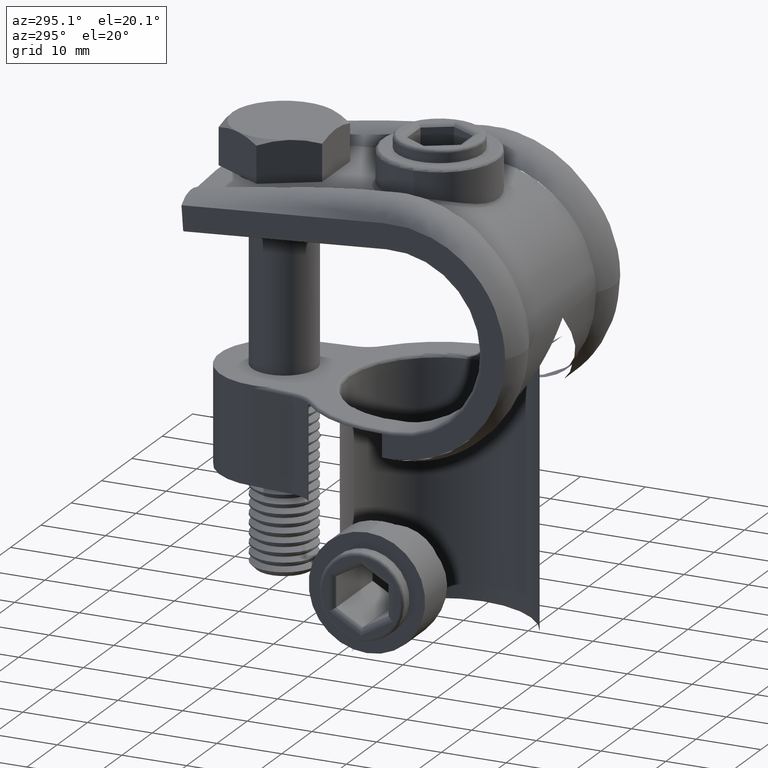
[diagram: clean part render]
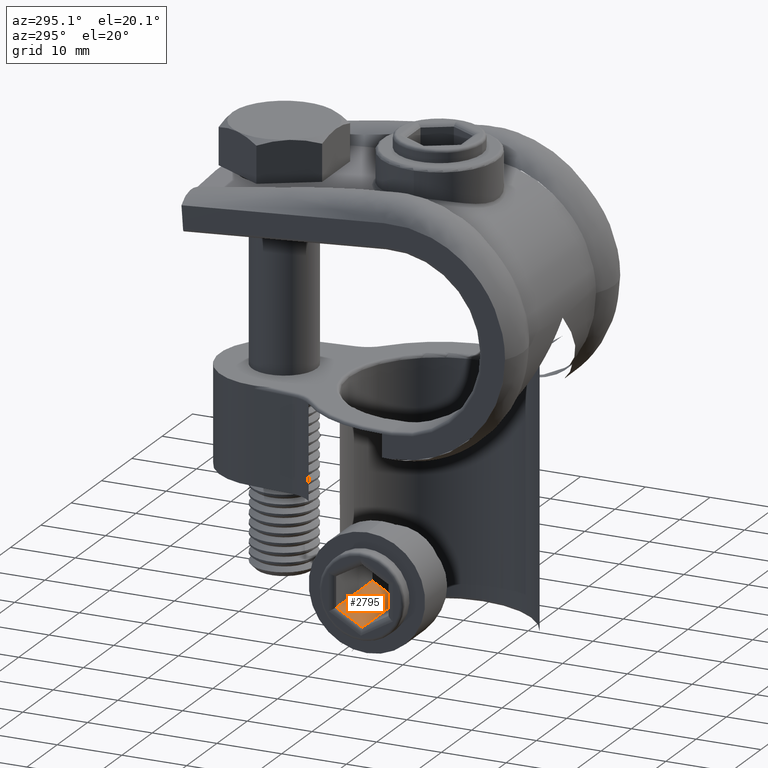
[diagram: same view with one face highlighted and labeled with its STEP entity id]
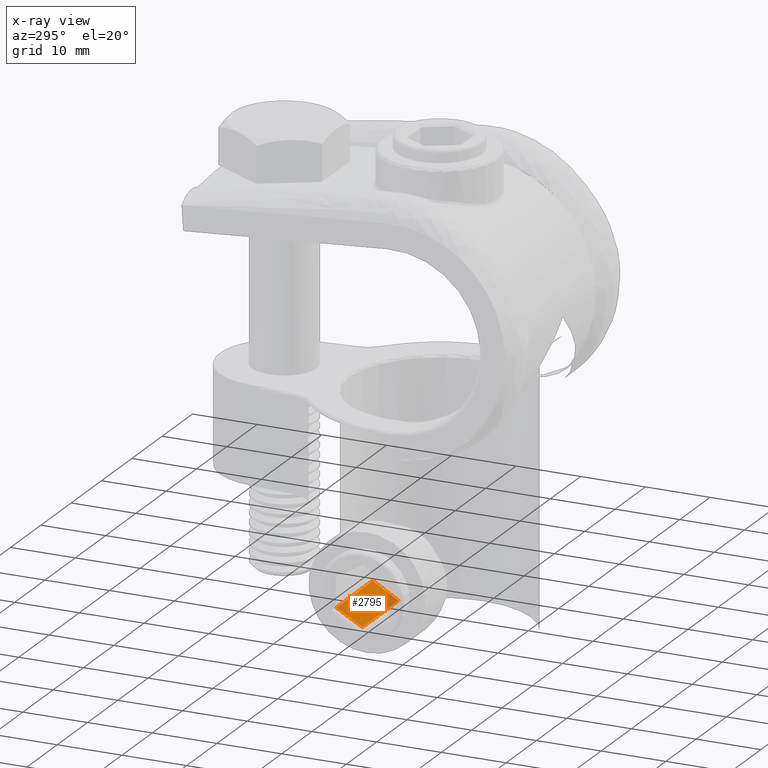
[diagram: x-ray of the same camera — body ghosted, the highlighted face saturated]
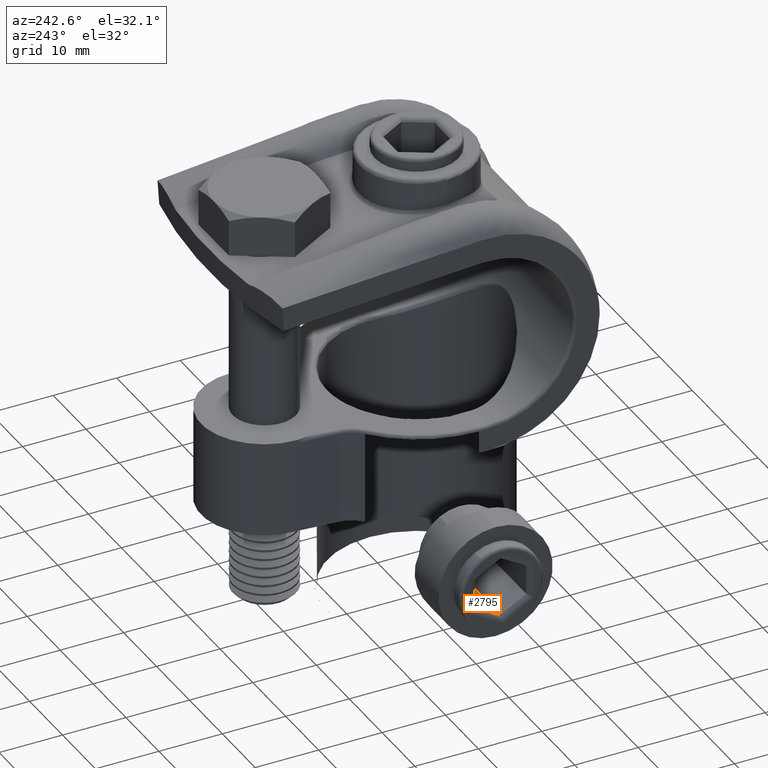
[diagram: same view with one face highlighted and labeled with its STEP entity id]
A machine part, auxiliary view. The second image highlights one B-rep face of the part: STEP entity #2795.
The next image is the same camera in x-ray: the body ghosted, the highlighted face saturated — about 5% of this face is hidden behind the body in this view.
A second angle (auxiliary view) of the same face is appended — the face is thin or edge-on in the first view.
In plain terms, the highlighted planar face has unit normal (0, 0.5, -0.866).
Its self-contained STEP definition (entity closure, byte-faithful):
#230 = VERTEX_POINT ( 'NONE', #2260 ) ;
#349 = CARTESIAN_POINT ( 'NONE',  ( 2.337499999999998579, 12.49999999999999822, -4.048668762692252621 ) ) ;
#466 = DIRECTION ( 'NONE',  ( -0.4999999999999998890, 0.000000000000000000, -0.8660254037844387076 ) ) ;
#634 = EDGE_LOOP ( 'NONE', ( #5963, #2489, #1065, #1795 ) ) ;
#652 = DIRECTION ( 'NONE',  ( 0.4999999999999998890, 0.000000000000000000, 0.8660254037844387076 ) ) ;
#995 = EDGE_CURVE ( 'NONE', #230, #3115, #4019, .T. ) ;
#1065 = ORIENTED_EDGE ( 'NONE', *, *, #3827, .F. ) ;
#1148 = CARTESIAN_POINT ( 'NONE',  ( 2.337499999999998579, 0.000000000000000000, -4.048668762692252621 ) ) ;
#1620 = VECTOR ( 'NONE', #5379, 1000.000000000000000 ) ;
#1795 = ORIENTED_EDGE ( 'NONE', *, *, #3924, .T. ) ;
#1897 = CARTESIAN_POINT ( 'NONE',  ( 2.337499999999999023, 12.50000000000000178, -4.048668762692252621 ) ) ;
#2260 = CARTESIAN_POINT ( 'NONE',  ( 4.674999999999998934, 0.5000000000000036637, -9.462810255028965378E-16 ) ) ;
#2333 = CARTESIAN_POINT ( 'NONE',  ( 2.337499999999998579, 0.5000000000000036637, -4.048668762692252621 ) ) ;
#2489 = ORIENTED_EDGE ( 'NONE', *, *, #3609, .T. ) ;
#2500 = VECTOR ( 'NONE', #466, 1000.000000000000000 ) ;
#2754 = DIRECTION ( 'NONE',  ( -0.000000000000000000, 1.000000000000000000, -0.000000000000000000 ) ) ;
#2795 = ADVANCED_FACE ( 'NONE', ( #2927 ), #5517, .F. ) ;
#2914 = VERTEX_POINT ( 'NONE', #2333 ) ;
#2927 = FACE_OUTER_BOUND ( 'NONE', #634, .T. ) ;
#3010 = CARTESIAN_POINT ( 'NONE',  ( 4.674999999999998934, 12.49999999999999822, -9.462810255028965378E-16 ) ) ;
#3115 = VERTEX_POINT ( 'NONE', #3010 ) ;
#3177 = CARTESIAN_POINT ( 'NONE',  ( 4.674999999999998934, 0.000000000000000000, -9.462810255028965378E-16 ) ) ;
#3609 = EDGE_CURVE ( 'NONE', #3115, #5684, #4972, .T. ) ;
#3618 = DIRECTION ( 'NONE',  ( 0.8660254037844387076, 0.000000000000000000, -0.4999999999999998890 ) ) ;
#3827 = EDGE_CURVE ( 'NONE', #2914, #5684, #5643, .T. ) ;
#3924 = EDGE_CURVE ( 'NONE', #2914, #230, #5407, .T. ) ;
#4008 = VECTOR ( 'NONE', #652, 1000.000000000000000 ) ;
#4019 = LINE ( 'NONE', #6012, #5418 ) ;
#4179 = AXIS2_PLACEMENT_3D ( 'NONE', #3177, #3618, #5984 ) ;
#4397 = CARTESIAN_POINT ( 'NONE',  ( 4.674999999999998934, 0.5000000000000038858, -9.462810255028965378E-16 ) ) ;
#4972 = LINE ( 'NONE', #1897, #2500 ) ;
#5379 = DIRECTION ( 'NONE',  ( -0.000000000000000000, 1.000000000000000000, -0.000000000000000000 ) ) ;
#5407 = LINE ( 'NONE', #4397, #4008 ) ;
#5418 = VECTOR ( 'NONE', #2754, 1000.000000000000000 ) ;
#5517 = PLANE ( 'NONE',  #4179 ) ;
#5643 = LINE ( 'NONE', #1148, #1620 ) ;
#5684 = VERTEX_POINT ( 'NONE', #349 ) ;
#5963 = ORIENTED_EDGE ( 'NONE', *, *, #995, .T. ) ;
#5984 = DIRECTION ( 'NONE',  ( -0.4999999999999998890, 0.000000000000000000, -0.8660254037844387076 ) ) ;
#6012 = CARTESIAN_POINT ( 'NONE',  ( 4.674999999999998934, 0.000000000000000000, -9.462810255028965378E-16 ) ) ;